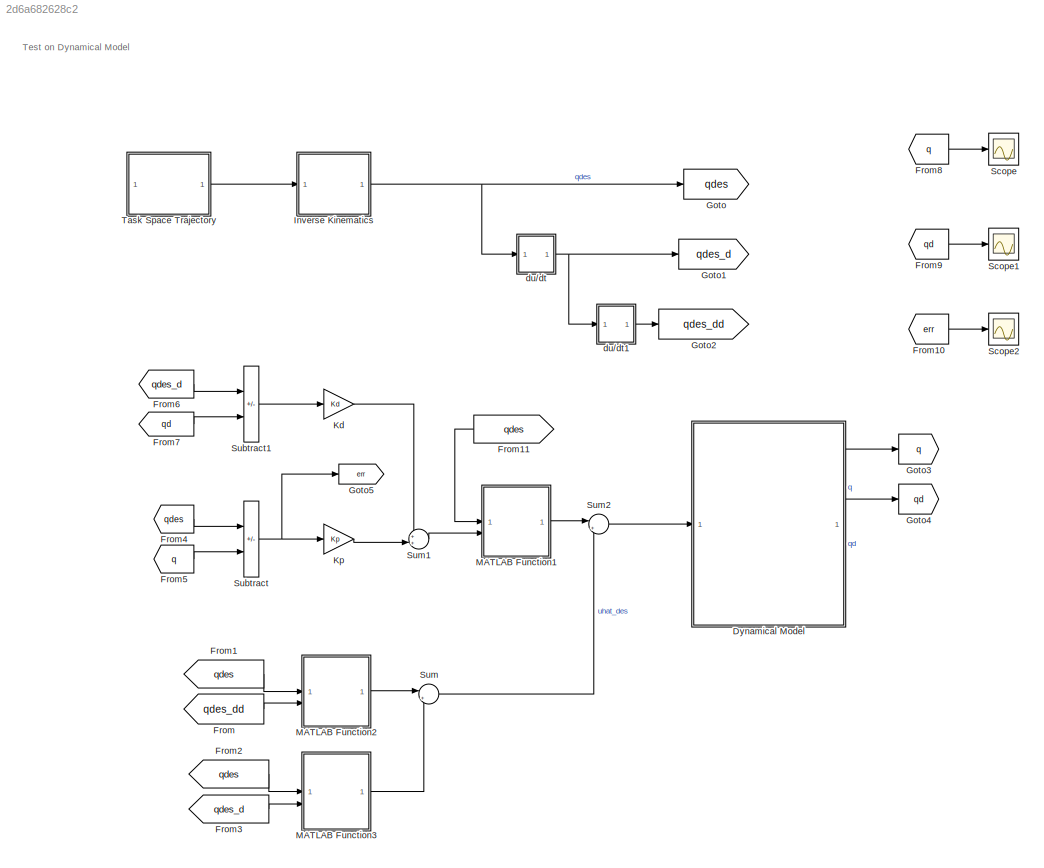
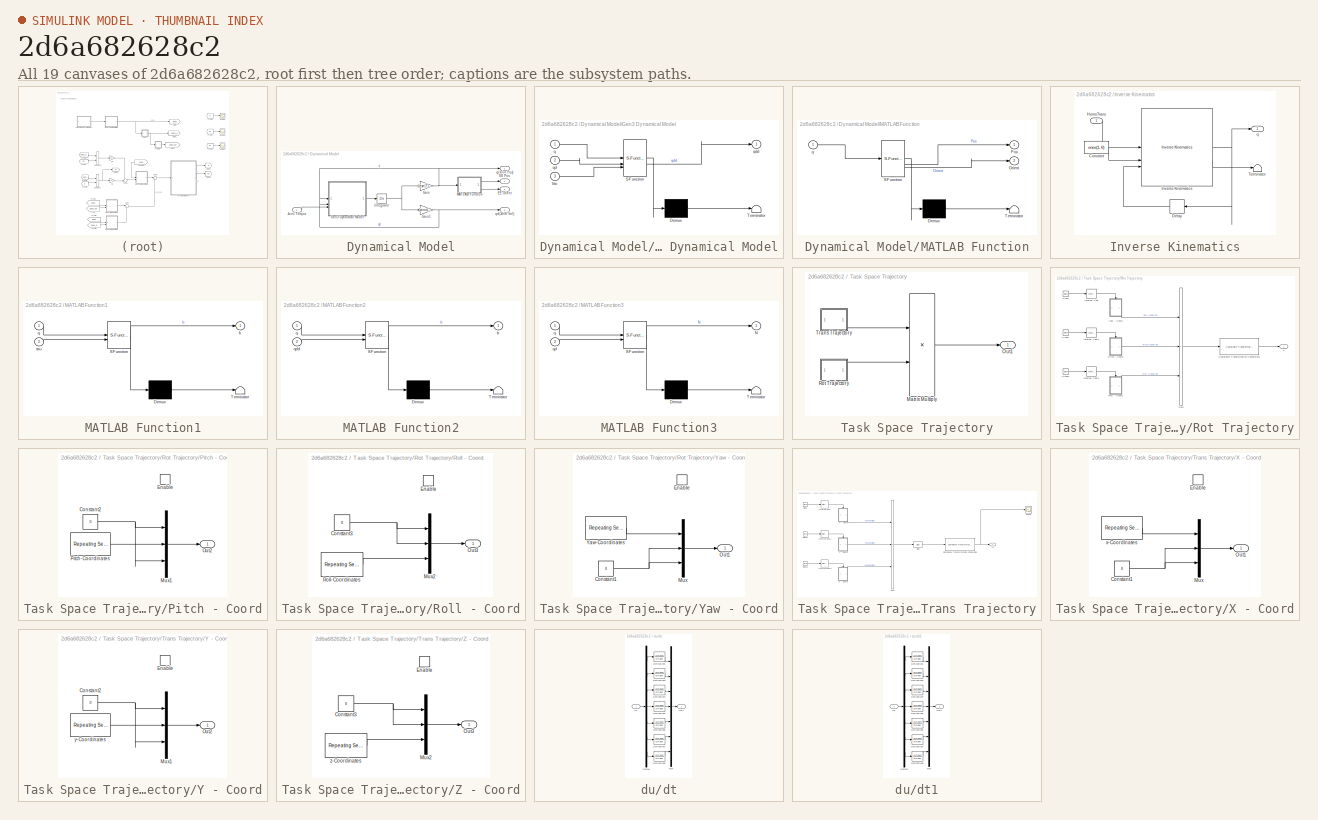
[diagram: thumbnail index - all 19 canvases of the model, root first then tree order]
MODEL slx_2d6a682628c2
KIND model
CONFIG AbsTol = auto
CONFIG EnableMultiTasking = off
CONFIG FixedStep = auto
CONFIG InitFcn = addpath('./../Robot Description/Robot Data Package/meshes/visual/')\naddpath('./../Dynamics and Kinematics/')\n\n% Controller Design\nDesign;
CONFIG MaxStep = auto
CONFIG MinStep = 0.0000001
CONFIG RelTol = auto
CONFIG SampleTimeConstraint = Unconstrained
CONFIG SolverName = ode15s
CONFIG StartTime = 0.0
CONFIG StopTime = 10
BLOCK [SubSystem] Dynamical Model
BLOCK [Outport] Dynamical Model/EE Orient
  NameLocation = right
  Port = 3
BLOCK [Outport] Dynamical Model/EE Pos
  NameLocation = right
  Port = 4
BLOCK [Gain] Dynamical Model/Gain
  Gain = [eye(7), zeros(7)]
  Multiplication = Matrix(K*u)
BLOCK [Gain] Dynamical Model/Gain1
  Gain = [zeros(7), eye(7)]
  Multiplication = Matrix(K*u)
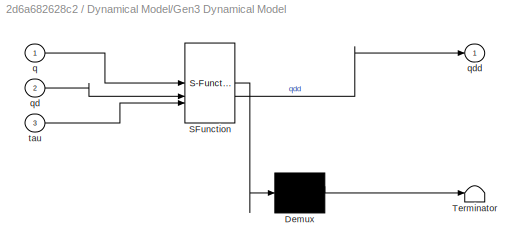
BLOCK [SubSystem] Dynamical Model/Gen3 Dynamical Model
  ErrorFcn = Stateflow.Translate.translate
  PermitHierarchicalResolution = ExplicitOnly
  SFBlockType = MATLAB Function
  TreatAsAtomicUnit = on
BLOCK [Demux] Dynamical Model/Gen3 Dynamical Model/ Demux 
  Outputs = 1
BLOCK [S-Function] Dynamical Model/Gen3 Dynamical Model/ SFunction 
  EnableBusSupport = on
  FunctionName = sf_sfun
  PortCounts = [3 2]
  SFcnIsStateOwnerBlock = off
  SFunctionDeploymentMode = off
  Tag = Stateflow S-Function 1
BLOCK [Terminator] Dynamical Model/Gen3 Dynamical Model/ Terminator 
BLOCK [Inport] Dynamical Model/Gen3 Dynamical Model/q
BLOCK [Inport] Dynamical Model/Gen3 Dynamical Model/qd
  Port = 2
BLOCK [Outport] Dynamical Model/Gen3 Dynamical Model/qdd
BLOCK [Inport] Dynamical Model/Gen3 Dynamical Model/tau
  Port = 3
BLOCK [Integrator] Dynamical Model/Integrator
  InitialCondition = qInitDM
BLOCK [Inport] Dynamical Model/Joint Torque
BLOCK [SubSystem] Dynamical Model/MATLAB Function
  ErrorFcn = Stateflow.Translate.translate
  PermitHierarchicalResolution = ExplicitOnly
  SFBlockType = MATLAB Function
  TreatAsAtomicUnit = on
BLOCK [Demux] Dynamical Model/MATLAB Function/ Demux 
  Outputs = 1
BLOCK [S-Function] Dynamical Model/MATLAB Function/ SFunction 
  EnableBusSupport = on
  FunctionName = sf_sfun
  PortCounts = [1 3]
  SFcnIsStateOwnerBlock = off
  SFunctionDeploymentMode = off
  Tag = Stateflow S-Function 3
BLOCK [Terminator] Dynamical Model/MATLAB Function/ Terminator 
BLOCK [Outport] Dynamical Model/MATLAB Function/Orient
  Port = 2
BLOCK [Outport] Dynamical Model/MATLAB Function/Pos
BLOCK [Inport] Dynamical Model/MATLAB Function/q
BLOCK [Outport] Dynamical Model/q(Joint Pos)
  NameLocation = right
BLOCK [Outport] Dynamical Model/qd(Joint Vel)
  NameLocation = right
  Port = 2
BLOCK [From] From
  GotoTag = qdes_dd
BLOCK [From] From1
  GotoTag = qdes
BLOCK [From] From10
  GotoTag = err
BLOCK [From] From11
  GotoTag = qdes
BLOCK [From] From2
  GotoTag = qdes
BLOCK [From] From3
  GotoTag = qdes_d
BLOCK [From] From4
  GotoTag = qdes
BLOCK [From] From5
  GotoTag = q
BLOCK [From] From6
  GotoTag = qdes_d
BLOCK [From] From7
  GotoTag = qd
BLOCK [From] From8
  GotoTag = q
BLOCK [From] From9
  GotoTag = qd
BLOCK [Goto] Goto
  GotoTag = qdes
BLOCK [Goto] Goto1
  GotoTag = qdes_d
BLOCK [Goto] Goto2
  GotoTag = qdes_dd
BLOCK [Goto] Goto3
  GotoTag = q
BLOCK [Goto] Goto4
  GotoTag = qd
BLOCK [Goto] Goto5
  GotoTag = err
BLOCK [SubSystem] Inverse Kinematics
BLOCK [Constant] Inverse Kinematics/Constant
  Value = ones(1, 6)
BLOCK [Delay] Inverse Kinematics/Delay
  DelayLength = 1
  InitialCondition = zeros(7,1)
  InputPortMap = u0
BLOCK [Inport] Inverse Kinematics/HomoTrans
BLOCK [Reference] Inverse Kinematics/Inverse Kinematics  REF=robotmaniplib/Inverse Kinematics
  SourceBlock = robotmaniplib/Inverse Kinematics
  SourceType = Inverse Kinematics
BLOCK [Terminator] Inverse Kinematics/Terminator
BLOCK [Outport] Inverse Kinematics/q
  NameLocation = right
BLOCK [Gain] Kd
  Gain = Kd
BLOCK [Gain] Kp
  Gain = Kp
BLOCK [SubSystem] MATLAB Function1
  ErrorFcn = Stateflow.Translate.translate
  PermitHierarchicalResolution = ExplicitOnly
  SFBlockType = MATLAB Function
  TreatAsAtomicUnit = on
BLOCK [Demux] MATLAB Function1/ Demux 
  Outputs = 1
BLOCK [S-Function] MATLAB Function1/ SFunction 
  EnableBusSupport = on
  FunctionName = sf_sfun
  PortCounts = [2 2]
  SFcnIsStateOwnerBlock = off
  SFunctionDeploymentMode = off
  Tag = Stateflow S-Function 4
BLOCK [Terminator] MATLAB Function1/ Terminator 
BLOCK [Outport] MATLAB Function1/b
BLOCK [Inport] MATLAB Function1/q
BLOCK [Inport] MATLAB Function1/tau
  Port = 2
BLOCK [SubSystem] MATLAB Function2
  ErrorFcn = Stateflow.Translate.translate
  PermitHierarchicalResolution = ExplicitOnly
  SFBlockType = MATLAB Function
  TreatAsAtomicUnit = on
BLOCK [Demux] MATLAB Function2/ Demux 
  Outputs = 1
BLOCK [S-Function] MATLAB Function2/ SFunction 
  EnableBusSupport = on
  FunctionName = sf_sfun
  PortCounts = [2 2]
  SFcnIsStateOwnerBlock = off
  SFunctionDeploymentMode = off
  Tag = Stateflow S-Function 2
BLOCK [Terminator] MATLAB Function2/ Terminator 
BLOCK [Outport] MATLAB Function2/b
BLOCK [Inport] MATLAB Function2/q
BLOCK [Inport] MATLAB Function2/qdd
  Port = 2
BLOCK [SubSystem] MATLAB Function3
  ErrorFcn = Stateflow.Translate.translate
  PermitHierarchicalResolution = ExplicitOnly
  SFBlockType = MATLAB Function
  TreatAsAtomicUnit = on
BLOCK [Demux] MATLAB Function3/ Demux 
  Outputs = 1
BLOCK [S-Function] MATLAB Function3/ SFunction 
  EnableBusSupport = on
  FunctionName = sf_sfun
  PortCounts = [2 2]
  SFcnIsStateOwnerBlock = off
  SFunctionDeploymentMode = off
  Tag = Stateflow S-Function 6
BLOCK [Terminator] MATLAB Function3/ Terminator 
BLOCK [Outport] MATLAB Function3/N
BLOCK [Inport] MATLAB Function3/q
BLOCK [Inport] MATLAB Function3/qd
  Port = 2
BLOCK [Scope] Scope
  Floating = off
  NumInputPorts = 1
  ScopeSpecificationString = Simulink.scopes.TimeScopeBlockCfg('CurrentConfiguration', extmgr.ConfigurationSet(extmgr.Configuration('Core','General UI',true),extmgr.Configuration('Core','Source UI',true),extmgr.Configuration('Sources','WiredSimulink',true),extmgr.Configuration('Visuals','Time Domain',true,'SerializedDisplays',{struct('MinYLimReal','-1.31661','MaxYLimReal','1.49915','YLabelReal','','MinYLimMag','0.00000','MaxY...<+1594ch>
BLOCK [Scope] Scope1
  Floating = off
  NumInputPorts = 1
  ScopeSpecificationString = Simulink.scopes.TimeScopeBlockCfg('CurrentConfiguration', extmgr.ConfigurationSet(extmgr.Configuration('Core','General UI',true),extmgr.Configuration('Core','Source UI',true),extmgr.Configuration('Sources','WiredSimulink',true,'DataLoggingVariableName','ScopeData1'),extmgr.Configuration('Visuals','Time Domain',true),extmgr.Configuration('Tools','Plot Navigation',true),extmgr.Configuration('Tools',...<+40ch>
BLOCK [Scope] Scope2
  Floating = off
  NumInputPorts = 1
  ScopeSpecificationString = Simulink.scopes.TimeScopeBlockCfg('CurrentConfiguration', extmgr.ConfigurationSet(extmgr.Configuration('Core','General UI',true),extmgr.Configuration('Core','Source UI',true),extmgr.Configuration('Sources','WiredSimulink',true,'DataLoggingVariableName','ScopeData2'),extmgr.Configuration('Visuals','Time Domain',true,'SerializedDisplays',{struct('MinYLimReal','-0.97834','MaxYLimReal','0.11215','YLab...<+1563ch>
BLOCK [Sum] Subtract
  IconShape = rectangular
  Inputs = +-
BLOCK [Sum] Subtract1
  IconShape = rectangular
  Inputs = +-
BLOCK [Sum] Sum
  Inputs = |++
BLOCK [Sum] Sum1
  Inputs = ++|
BLOCK [Sum] Sum2
  Inputs = |++
BLOCK [SubSystem] Task Space Trajectory
BLOCK [Product] Task Space Trajectory/Matrix Multiply
  Multiplication = Matrix(*)
BLOCK [Outport] Task Space Trajectory/Out1
BLOCK [SubSystem] Task Space Trajectory/Rot Trajectory
BLOCK [Clock] Task Space Trajectory/Rot Trajectory/Clock
BLOCK [Clock] Task Space Trajectory/Rot Trajectory/Clock1
BLOCK [Clock] Task Space Trajectory/Rot Trajectory/Clock2
BLOCK [Reference] Task Space Trajectory/Rot Trajectory/Coordinate Transformation Conversion1  REF=robotcorelib/Coordinate Transformation Conversion
  SourceBlock = robotcorelib/Coordinate Transformation Conversion
  SourceType = robotics.slcore.internal.block.CoordinateTransformationConversion
BLOCK [Reference] Task Space Trajectory/Rot Trajectory/Interval Test  REF=simulink/Logic and Bit
Operations/Interval Test
  SourceBlock = simulink/Logic and Bit\nOperations/Interval Test
  SourceType = Interval Test
BLOCK [Reference] Task Space Trajectory/Rot Trajectory/Interval Test1  REF=simulink/Logic and Bit
Operations/Interval Test
  SourceBlock = simulink/Logic and Bit\nOperations/Interval Test
  SourceType = Interval Test
BLOCK [Reference] Task Space Trajectory/Rot Trajectory/Interval Test2  REF=simulink/Logic and Bit
Operations/Interval Test
  SourceBlock = simulink/Logic and Bit\nOperations/Interval Test
  SourceType = Interval Test
BLOCK [SubSystem] Task Space Trajectory/Rot Trajectory/Pitch - Coord
BLOCK [Constant] Task Space Trajectory/Rot Trajectory/Pitch - Coord/Constant2
  Value = 0
BLOCK [EnablePort] Task Space Trajectory/Rot Trajectory/Pitch - Coord/Enable
BLOCK [Mux] Task Space Trajectory/Rot Trajectory/Pitch - Coord/Mux1
  DisplayOption = bar
  Inputs = 3
BLOCK [Outport] Task Space Trajectory/Rot Trajectory/Pitch - Coord/Out2
BLOCK [Reference] Task Space Trajectory/Rot Trajectory/Pitch - Coord/Pitch-Coordinates   REF=simulink/Sources/Repeating
Sequence
Interpolated
  SourceBlock = simulink/Sources/Repeating\nSequence\nInterpolated
  SourceType = Repeating Sequence Interpolated
BLOCK [SubSystem] Task Space Trajectory/Rot Trajectory/Roll - Coord
BLOCK [Constant] Task Space Trajectory/Rot Trajectory/Roll - Coord/Constant3
  Value = 0
BLOCK [EnablePort] Task Space Trajectory/Rot Trajectory/Roll - Coord/Enable
BLOCK [Mux] Task Space Trajectory/Rot Trajectory/Roll - Coord/Mux2
  DisplayOption = bar
  Inputs = 3
BLOCK [Outport] Task Space Trajectory/Rot Trajectory/Roll - Coord/Out3
BLOCK [Reference] Task Space Trajectory/Rot Trajectory/Roll - Coord/Roll-Coordinates   REF=simulink/Sources/Repeating
Sequence
Interpolated
  SourceBlock = simulink/Sources/Repeating\nSequence\nInterpolated
  SourceType = Repeating Sequence Interpolated
BLOCK [Sum] Task Space Trajectory/Rot Trajectory/Sum
  IconShape = rectangular
  Inputs = +++
BLOCK [SubSystem] Task Space Trajectory/Rot Trajectory/Yaw - Coord
BLOCK [Constant] Task Space Trajectory/Rot Trajectory/Yaw - Coord/Constant1
  Value = 0
BLOCK [EnablePort] Task Space Trajectory/Rot Trajectory/Yaw - Coord/Enable
BLOCK [Mux] Task Space Trajectory/Rot Trajectory/Yaw - Coord/Mux
  DisplayOption = bar
  Inputs = 3
BLOCK [Outport] Task Space Trajectory/Rot Trajectory/Yaw - Coord/Out1
BLOCK [Reference] Task Space Trajectory/Rot Trajectory/Yaw - Coord/Yaw-Coordinates   REF=simulink/Sources/Repeating
Sequence
Interpolated
  SourceBlock = simulink/Sources/Repeating\nSequence\nInterpolated
  SourceType = Repeating Sequence Interpolated
BLOCK [Outport] Task Space Trajectory/Rot Trajectory/u
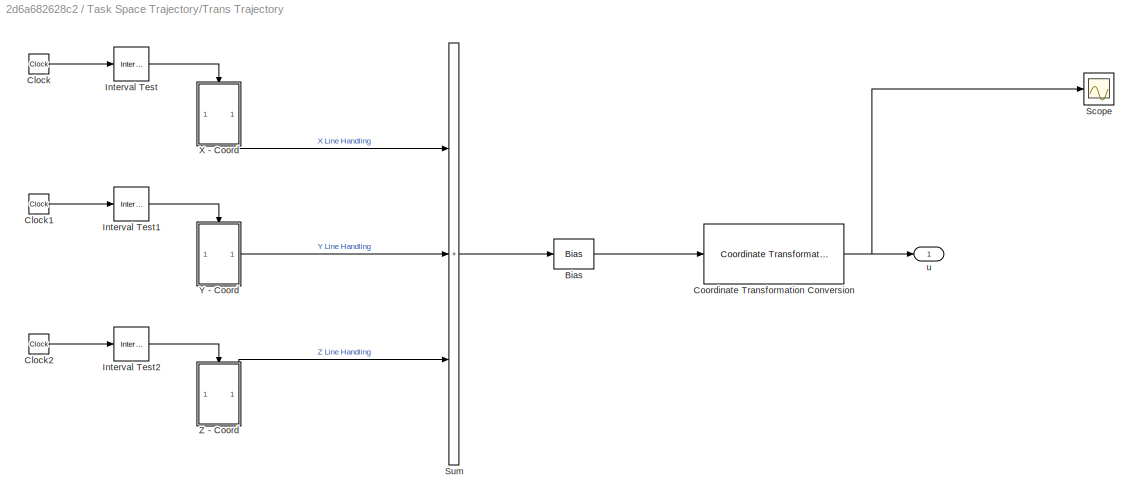
BLOCK [SubSystem] Task Space Trajectory/Trans Trajectory
BLOCK [Bias] Task Space Trajectory/Trans Trajectory/Bias
  Bias = 0.35
  SaturateOnIntegerOverflow = off
BLOCK [Clock] Task Space Trajectory/Trans Trajectory/Clock
BLOCK [Clock] Task Space Trajectory/Trans Trajectory/Clock1
BLOCK [Clock] Task Space Trajectory/Trans Trajectory/Clock2
BLOCK [Reference] Task Space Trajectory/Trans Trajectory/Coordinate Transformation Conversion  REF=robotcorelib/Coordinate Transformation Conversion
  SourceBlock = robotcorelib/Coordinate Transformation Conversion
  SourceType = robotics.slcore.internal.block.CoordinateTransformationConversion
BLOCK [Reference] Task Space Trajectory/Trans Trajectory/Interval Test  REF=simulink/Logic and Bit
Operations/Interval Test
  SourceBlock = simulink/Logic and Bit\nOperations/Interval Test
  SourceType = Interval Test
BLOCK [Reference] Task Space Trajectory/Trans Trajectory/Interval Test1  REF=simulink/Logic and Bit
Operations/Interval Test
  SourceBlock = simulink/Logic and Bit\nOperations/Interval Test
  SourceType = Interval Test
BLOCK [Reference] Task Space Trajectory/Trans Trajectory/Interval Test2  REF=simulink/Logic and Bit
Operations/Interval Test
  SourceBlock = simulink/Logic and Bit\nOperations/Interval Test
  SourceType = Interval Test
BLOCK [Scope] Task Space Trajectory/Trans Trajectory/Scope
  Floating = off
  NumInputPorts = 1
  ScopeSpecificationString = Simulink.scopes.TimeScopeBlockCfg('CurrentConfiguration', extmgr.ConfigurationSet(extmgr.Configuration('Core','General UI',true),extmgr.Configuration('Core','Source UI',true),extmgr.Configuration('Sources','WiredSimulink',true,'DataLoggingVariableName','ScopeData2'),extmgr.Configuration('Visuals','Time Domain',true,'SerializedDisplays',{struct('MinYLimReal','-0.125','MaxYLimReal','1.125','YLabelRe...<+2124ch>
BLOCK [Sum] Task Space Trajectory/Trans Trajectory/Sum
  IconShape = rectangular
  Inputs = +++
BLOCK [SubSystem] Task Space Trajectory/Trans Trajectory/X - Coord
BLOCK [Constant] Task Space Trajectory/Trans Trajectory/X - Coord/Constant1
  Value = 0
BLOCK [EnablePort] Task Space Trajectory/Trans Trajectory/X - Coord/Enable
BLOCK [Mux] Task Space Trajectory/Trans Trajectory/X - Coord/Mux
  DisplayOption = bar
  Inputs = 3
BLOCK [Outport] Task Space Trajectory/Trans Trajectory/X - Coord/Out1
BLOCK [Reference] Task Space Trajectory/Trans Trajectory/X - Coord/x-Coordinates   REF=simulink/Sources/Repeating
Sequence
Interpolated
  SourceBlock = simulink/Sources/Repeating\nSequence\nInterpolated
  SourceType = Repeating Sequence Interpolated
BLOCK [SubSystem] Task Space Trajectory/Trans Trajectory/Y - Coord
BLOCK [Constant] Task Space Trajectory/Trans Trajectory/Y - Coord/Constant2
  Value = 0
BLOCK [EnablePort] Task Space Trajectory/Trans Trajectory/Y - Coord/Enable
BLOCK [Mux] Task Space Trajectory/Trans Trajectory/Y - Coord/Mux1
  DisplayOption = bar
  Inputs = 3
BLOCK [Outport] Task Space Trajectory/Trans Trajectory/Y - Coord/Out2
BLOCK [Reference] Task Space Trajectory/Trans Trajectory/Y - Coord/y-Coordinates   REF=simulink/Sources/Repeating
Sequence
Interpolated
  SourceBlock = simulink/Sources/Repeating\nSequence\nInterpolated
  SourceType = Repeating Sequence Interpolated
BLOCK [SubSystem] Task Space Trajectory/Trans Trajectory/Z - Coord
BLOCK [Constant] Task Space Trajectory/Trans Trajectory/Z - Coord/Constant3
  Value = 0
BLOCK [EnablePort] Task Space Trajectory/Trans Trajectory/Z - Coord/Enable
BLOCK [Mux] Task Space Trajectory/Trans Trajectory/Z - Coord/Mux2
  DisplayOption = bar
  Inputs = 3
BLOCK [Outport] Task Space Trajectory/Trans Trajectory/Z - Coord/Out3
BLOCK [Reference] Task Space Trajectory/Trans Trajectory/Z - Coord/z-Coordinates  REF=simulink/Sources/Repeating
Sequence
Interpolated
  SourceBlock = simulink/Sources/Repeating\nSequence\nInterpolated
  SourceType = Repeating Sequence Interpolated
BLOCK [Outport] Task Space Trajectory/Trans Trajectory/u
BLOCK [SubSystem] du//dt
BLOCK [Demux] du//dt/Demux
  Outputs = 7
BLOCK [TransferFcn] du//dt/Derivative1
  Denominator = DF.den
  Numerator = DF.num
BLOCK [TransferFcn] du//dt/Derivative3
  Denominator = DF.den
  Numerator = DF.num
BLOCK [TransferFcn] du//dt/Derivative4
  Denominator = DF.den
  Numerator = DF.num
BLOCK [TransferFcn] du//dt/Derivative5
  Denominator = DF.den
  Numerator = DF.num
BLOCK [TransferFcn] du//dt/Derivative6
  Denominator = DF.den
  Numerator = DF.num
BLOCK [TransferFcn] du//dt/Derivative7
  Denominator = DF.den
  Numerator = DF.num
BLOCK [TransferFcn] du//dt/Derivative8
  Denominator = DF.den
  Numerator = DF.num
BLOCK [Inport] du//dt/In1
BLOCK [Mux] du//dt/Mux
  DisplayOption = bar
  Inputs = 7
BLOCK [Outport] du//dt/Out1
BLOCK [SubSystem] du//dt1
BLOCK [Demux] du//dt1/Demux
  Outputs = 7
BLOCK [TransferFcn] du//dt1/Derivative1
  Denominator = DF.den
  Numerator = DF.num
BLOCK [TransferFcn] du//dt1/Derivative3
  Denominator = DF.den
  Numerator = DF.num
BLOCK [TransferFcn] du//dt1/Derivative4
  Denominator = DF.den
  Numerator = DF.num
BLOCK [TransferFcn] du//dt1/Derivative5
  Denominator = DF.den
  Numerator = DF.num
BLOCK [TransferFcn] du//dt1/Derivative6
  Denominator = DF.den
  Numerator = DF.num
BLOCK [TransferFcn] du//dt1/Derivative7
  Denominator = DF.den
  Numerator = DF.num
BLOCK [TransferFcn] du//dt1/Derivative8
  Denominator = DF.den
  Numerator = DF.num
BLOCK [Inport] du//dt1/In1
BLOCK [Mux] du//dt1/Mux
  DisplayOption = bar
  Inputs = 7
BLOCK [Outport] du//dt1/Out1
ANNOTATION (root): Test on Dynamical Model
NET Dynamical Model/Gain1:1 -> Dynamical Model/Gen3 Dynamical Model:2, Dynamical Model/qd(Joint Vel):1
NET Dynamical Model/Gain:1 -> Dynamical Model/Gen3 Dynamical Model:1, Dynamical Model/MATLAB Function:1, Dynamical Model/q(Joint Pos):1
LINE Dynamical Model/Gen3 Dynamical Model:1 -> Dynamical Model/Integrator:1
NET Dynamical Model/Integrator:1 -> Dynamical Model/Gain1:1, Dynamical Model/Gain:1
LINE Dynamical Model/Joint Torque:1 -> Dynamical Model/Gen3 Dynamical Model:3
LINE Dynamical Model/MATLAB Function:1 -> Dynamical Model/EE Pos:1
LINE Dynamical Model/MATLAB Function:2 -> Dynamical Model/EE Orient:1
LINE Dynamical Model:1 -> Goto3:1
LINE Dynamical Model:2 -> Goto4:1
LINE From10:1 -> Scope2:1
LINE From11:1 -> MATLAB Function1:1
LINE From1:1 -> MATLAB Function2:1
LINE From2:1 -> MATLAB Function3:1
LINE From3:1 -> MATLAB Function3:2
LINE From4:1 -> Subtract:1
LINE From5:1 -> Subtract:2
LINE From6:1 -> Subtract1:1
LINE From7:1 -> Subtract1:2
LINE From8:1 -> Scope:1
LINE From9:1 -> Scope1:1
LINE From:1 -> MATLAB Function2:2
LINE Inverse Kinematics/Constant:1 -> Inverse Kinematics/Inverse Kinematics:2
LINE Inverse Kinematics/Delay:1 -> Inverse Kinematics/Inverse Kinematics:3
LINE Inverse Kinematics/HomoTrans:1 -> Inverse Kinematics/Inverse Kinematics:1
NET Inverse Kinematics/Inverse Kinematics:1 -> Inverse Kinematics/Delay:1, Inverse Kinematics/q:1
LINE Inverse Kinematics/Inverse Kinematics:2 -> Inverse Kinematics/Terminator:1
NET Inverse Kinematics:1 -> Goto:1, du//dt:1
LINE Kd:1 -> Sum1:1
LINE Kp:1 -> Sum1:2
LINE MATLAB Function1:1 -> Sum2:1
LINE MATLAB Function2:1 -> Sum:1
LINE MATLAB Function3:1 -> Sum:2
LINE Subtract1:1 -> Kd:1
NET Subtract:1 -> Goto5:1, Kp:1
LINE Sum1:1 -> MATLAB Function1:2
LINE Sum2:1 -> Dynamical Model:1
LINE Sum:1 -> Sum2:2
LINE Task Space Trajectory/Matrix Multiply:1 -> Task Space Trajectory/Out1:1
LINE Task Space Trajectory/Rot Trajectory/Clock1:1 -> Task Space Trajectory/Rot Trajectory/Interval Test1:1
LINE Task Space Trajectory/Rot Trajectory/Clock2:1 -> Task Space Trajectory/Rot Trajectory/Interval Test2:1
LINE Task Space Trajectory/Rot Trajectory/Clock:1 -> Task Space Trajectory/Rot Trajectory/Interval Test:1
LINE Task Space Trajectory/Rot Trajectory/Coordinate Transformation Conversion1:1 -> Task Space Trajectory/Rot Trajectory/u:1
LINE Task Space Trajectory/Rot Trajectory/Interval Test1:1 -> Task Space Trajectory/Rot Trajectory/Pitch - Coord:enable
LINE Task Space Trajectory/Rot Trajectory/Interval Test2:1 -> Task Space Trajectory/Rot Trajectory/Roll - Coord:enable
LINE Task Space Trajectory/Rot Trajectory/Interval Test:1 -> Task Space Trajectory/Rot Trajectory/Yaw - Coord:enable
NET Task Space Trajectory/Rot Trajectory/Pitch - Coord/Constant2:1 -> Task Space Trajectory/Rot Trajectory/Pitch - Coord/Mux1:1, Task Space Trajectory/Rot Trajectory/Pitch - Coord/Mux1:3
LINE Task Space Trajectory/Rot Trajectory/Pitch - Coord/Mux1:1 -> Task Space Trajectory/Rot Trajectory/Pitch - Coord/Out2:1
LINE Task Space Trajectory/Rot Trajectory/Pitch - Coord/Pitch-Coordinates :1 -> Task Space Trajectory/Rot Trajectory/Pitch - Coord/Mux1:2
LINE Task Space Trajectory/Rot Trajectory/Pitch - Coord:1 -> Task Space Trajectory/Rot Trajectory/Sum:2
NET Task Space Trajectory/Rot Trajectory/Roll - Coord/Constant3:1 -> Task Space Trajectory/Rot Trajectory/Roll - Coord/Mux2:1, Task Space Trajectory/Rot Trajectory/Roll - Coord/Mux2:2
LINE Task Space Trajectory/Rot Trajectory/Roll - Coord/Mux2:1 -> Task Space Trajectory/Rot Trajectory/Roll - Coord/Out3:1
LINE Task Space Trajectory/Rot Trajectory/Roll - Coord/Roll-Coordinates :1 -> Task Space Trajectory/Rot Trajectory/Roll - Coord/Mux2:3
LINE Task Space Trajectory/Rot Trajectory/Roll - Coord:1 -> Task Space Trajectory/Rot Trajectory/Sum:3
LINE Task Space Trajectory/Rot Trajectory/Sum:1 -> Task Space Trajectory/Rot Trajectory/Coordinate Transformation Conversion1:1
NET Task Space Trajectory/Rot Trajectory/Yaw - Coord/Constant1:1 -> Task Space Trajectory/Rot Trajectory/Yaw - Coord/Mux:2, Task Space Trajectory/Rot Trajectory/Yaw - Coord/Mux:3
LINE Task Space Trajectory/Rot Trajectory/Yaw - Coord/Mux:1 -> Task Space Trajectory/Rot Trajectory/Yaw - Coord/Out1:1
LINE Task Space Trajectory/Rot Trajectory/Yaw - Coord/Yaw-Coordinates :1 -> Task Space Trajectory/Rot Trajectory/Yaw - Coord/Mux:1
LINE Task Space Trajectory/Rot Trajectory/Yaw - Coord:1 -> Task Space Trajectory/Rot Trajectory/Sum:1
LINE Task Space Trajectory/Rot Trajectory:1 -> Task Space Trajectory/Matrix Multiply:2
LINE Task Space Trajectory/Trans Trajectory/Bias:1 -> Task Space Trajectory/Trans Trajectory/Coordinate Transformation Conversion:1
LINE Task Space Trajectory/Trans Trajectory/Clock1:1 -> Task Space Trajectory/Trans Trajectory/Interval Test1:1
LINE Task Space Trajectory/Trans Trajectory/Clock2:1 -> Task Space Trajectory/Trans Trajectory/Interval Test2:1
LINE Task Space Trajectory/Trans Trajectory/Clock:1 -> Task Space Trajectory/Trans Trajectory/Interval Test:1
NET Task Space Trajectory/Trans Trajectory/Coordinate Transformation Conversion:1 -> Task Space Trajectory/Trans Trajectory/Scope:1, Task Space Trajectory/Trans Trajectory/u:1
LINE Task Space Trajectory/Trans Trajectory/Interval Test1:1 -> Task Space Trajectory/Trans Trajectory/Y - Coord:enable
LINE Task Space Trajectory/Trans Trajectory/Interval Test2:1 -> Task Space Trajectory/Trans Trajectory/Z - Coord:enable
LINE Task Space Trajectory/Trans Trajectory/Interval Test:1 -> Task Space Trajectory/Trans Trajectory/X - Coord:enable
LINE Task Space Trajectory/Trans Trajectory/Sum:1 -> Task Space Trajectory/Trans Trajectory/Bias:1
NET Task Space Trajectory/Trans Trajectory/X - Coord/Constant1:1 -> Task Space Trajectory/Trans Trajectory/X - Coord/Mux:2, Task Space Trajectory/Trans Trajectory/X - Coord/Mux:3
LINE Task Space Trajectory/Trans Trajectory/X - Coord/Mux:1 -> Task Space Trajectory/Trans Trajectory/X - Coord/Out1:1
LINE Task Space Trajectory/Trans Trajectory/X - Coord/x-Coordinates :1 -> Task Space Trajectory/Trans Trajectory/X - Coord/Mux:1
LINE Task Space Trajectory/Trans Trajectory/X - Coord:1 -> Task Space Trajectory/Trans Trajectory/Sum:1
NET Task Space Trajectory/Trans Trajectory/Y - Coord/Constant2:1 -> Task Space Trajectory/Trans Trajectory/Y - Coord/Mux1:1, Task Space Trajectory/Trans Trajectory/Y - Coord/Mux1:3
LINE Task Space Trajectory/Trans Trajectory/Y - Coord/Mux1:1 -> Task Space Trajectory/Trans Trajectory/Y - Coord/Out2:1
LINE Task Space Trajectory/Trans Trajectory/Y - Coord/y-Coordinates :1 -> Task Space Trajectory/Trans Trajectory/Y - Coord/Mux1:2
LINE Task Space Trajectory/Trans Trajectory/Y - Coord:1 -> Task Space Trajectory/Trans Trajectory/Sum:2
NET Task Space Trajectory/Trans Trajectory/Z - Coord/Constant3:1 -> Task Space Trajectory/Trans Trajectory/Z - Coord/Mux2:1, Task Space Trajectory/Trans Trajectory/Z - Coord/Mux2:2
LINE Task Space Trajectory/Trans Trajectory/Z - Coord/Mux2:1 -> Task Space Trajectory/Trans Trajectory/Z - Coord/Out3:1
LINE Task Space Trajectory/Trans Trajectory/Z - Coord/z-Coordinates:1 -> Task Space Trajectory/Trans Trajectory/Z - Coord/Mux2:3
LINE Task Space Trajectory/Trans Trajectory/Z - Coord:1 -> Task Space Trajectory/Trans Trajectory/Sum:3
LINE Task Space Trajectory/Trans Trajectory:1 -> Task Space Trajectory/Matrix Multiply:1
LINE Task Space Trajectory:1 -> Inverse Kinematics:1
LINE du//dt/Demux:1 -> du//dt/Derivative1:1
LINE du//dt/Demux:2 -> du//dt/Derivative3:1
LINE du//dt/Demux:3 -> du//dt/Derivative4:1
LINE du//dt/Demux:4 -> du//dt/Derivative5:1
LINE du//dt/Demux:5 -> du//dt/Derivative6:1
LINE du//dt/Demux:6 -> du//dt/Derivative7:1
LINE du//dt/Demux:7 -> du//dt/Derivative8:1
LINE du//dt/Derivative1:1 -> du//dt/Mux:1
LINE du//dt/Derivative3:1 -> du//dt/Mux:2
LINE du//dt/Derivative4:1 -> du//dt/Mux:3
LINE du//dt/Derivative5:1 -> du//dt/Mux:4
LINE du//dt/Derivative6:1 -> du//dt/Mux:5
LINE du//dt/Derivative7:1 -> du//dt/Mux:6
LINE du//dt/Derivative8:1 -> du//dt/Mux:7
LINE du//dt/In1:1 -> du//dt/Demux:1
LINE du//dt/Mux:1 -> du//dt/Out1:1
LINE du//dt1/Demux:1 -> du//dt1/Derivative1:1
LINE du//dt1/Demux:2 -> du//dt1/Derivative3:1
LINE du//dt1/Demux:3 -> du//dt1/Derivative4:1
LINE du//dt1/Demux:4 -> du//dt1/Derivative5:1
LINE du//dt1/Demux:5 -> du//dt1/Derivative6:1
LINE du//dt1/Demux:6 -> du//dt1/Derivative7:1
LINE du//dt1/Demux:7 -> du//dt1/Derivative8:1
LINE du//dt1/Derivative1:1 -> du//dt1/Mux:1
LINE du//dt1/Derivative3:1 -> du//dt1/Mux:2
LINE du//dt1/Derivative4:1 -> du//dt1/Mux:3
LINE du//dt1/Derivative5:1 -> du//dt1/Mux:4
LINE du//dt1/Derivative6:1 -> du//dt1/Mux:5
LINE du//dt1/Derivative7:1 -> du//dt1/Mux:6
LINE du//dt1/Derivative8:1 -> du//dt1/Mux:7
LINE du//dt1/In1:1 -> du//dt1/Demux:1
LINE du//dt1/Mux:1 -> du//dt1/Out1:1
LINE du//dt1:1 -> Goto2:1
NET du//dt:1 -> Goto1:1, du//dt1:1
note: NET lines group one-source signal fan-out (src -> all destinations, sorted); 1:1 wires keep LINE
CHART MATLAB Function2 states=1 transitions=1
  STATE_LABEL 'eML_blk_kernel()'
  STATE_LABEL "SCRIPT:\nfunction b = B(q, qdd) %#codegen\n    coder.extrinsic('Gen3ODEFun_B');\n\n    tmp = zeros(7, 7);\n    tmp = Gen3ODEFun_B(q);\n\n    b = zeros(7, 1);\n    b = tmp * qdd;\nend"
CHART Dynamical Model/MATLAB Function states=1 transitions=1
  STATE_LABEL 'eML_blk_kernel()'
  STATE_LABEL "SCRIPT:\nfunction [Pos, Orient] = FK(q) %#codegen\n    coder.extrinsic('Gen3FK');\n\n    tmp = zeros(6, 1);\n    tmp = Gen3FK(q);\n\n    Pos    = tmp(1:3, 1);\n    Orient = tmp(4:6, 1);      % Order = [Yaw - Pitch - Roll]\nend"
CHART MATLAB Function1 states=1 transitions=1
  STATE_LABEL 'eML_blk_kernel()'
  STATE_LABEL "SCRIPT:\nfunction b = B(q, tau) %#codegen\n    coder.extrinsic('Gen3ODEFun_B');\n\n    tmp = zeros(7, 7);\n    tmp = Gen3ODEFun_B(q);\n\n    b = zeros(7, 1);\n    b = tmp * tau;\nend"
CHART MATLAB Function3 states=1 transitions=1
  STATE_LABEL 'eML_blk_kernel()'
  STATE_LABEL "SCRIPT:\nfunction N = n(q, qd) %#codegen\n    coder.extrinsic('Gen3ODEFun_C');\n    coder.extrinsic('Gen3ODEFun_g');\n\n    N = zeros(7, 1);\n    C = zeros(7, 7);\n    g = zeros(7, 1);\n    \n    C = Gen3ODEFun_C(q, qd);\n    g = Gen3ODEFun_g(q);\n    N = C * qd + g;\nend"
CHART Dynamical Model/Gen3 Dynamical Model states=1 transitions=1
  STATE_LABEL 'eML_blk_kernel()'
  STATE_LABEL "SCRIPT:\nfunction qdd = fcn(q, qd, tau) %#codegen\n    coder.extrinsic('Gen3ODEFun');\n\n    qdd = zeros(14, 1);\n    qdd = Gen3ODEFun(0, [q; qd], tau);\nend\n"
CHART  states=0 transitions=0
CHART  states=0 transitions=0
CHART  states=0 transitions=0
CHART  states=0 transitions=0
CHART  states=0 transitions=0
